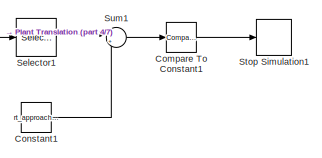
[diagram: root canvas - part 1/7, top right region]
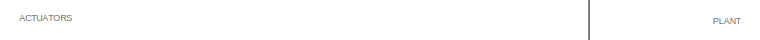
[diagram: root canvas - part 2/7, top center region]
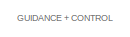
[diagram: root canvas - part 3/7, top left region]
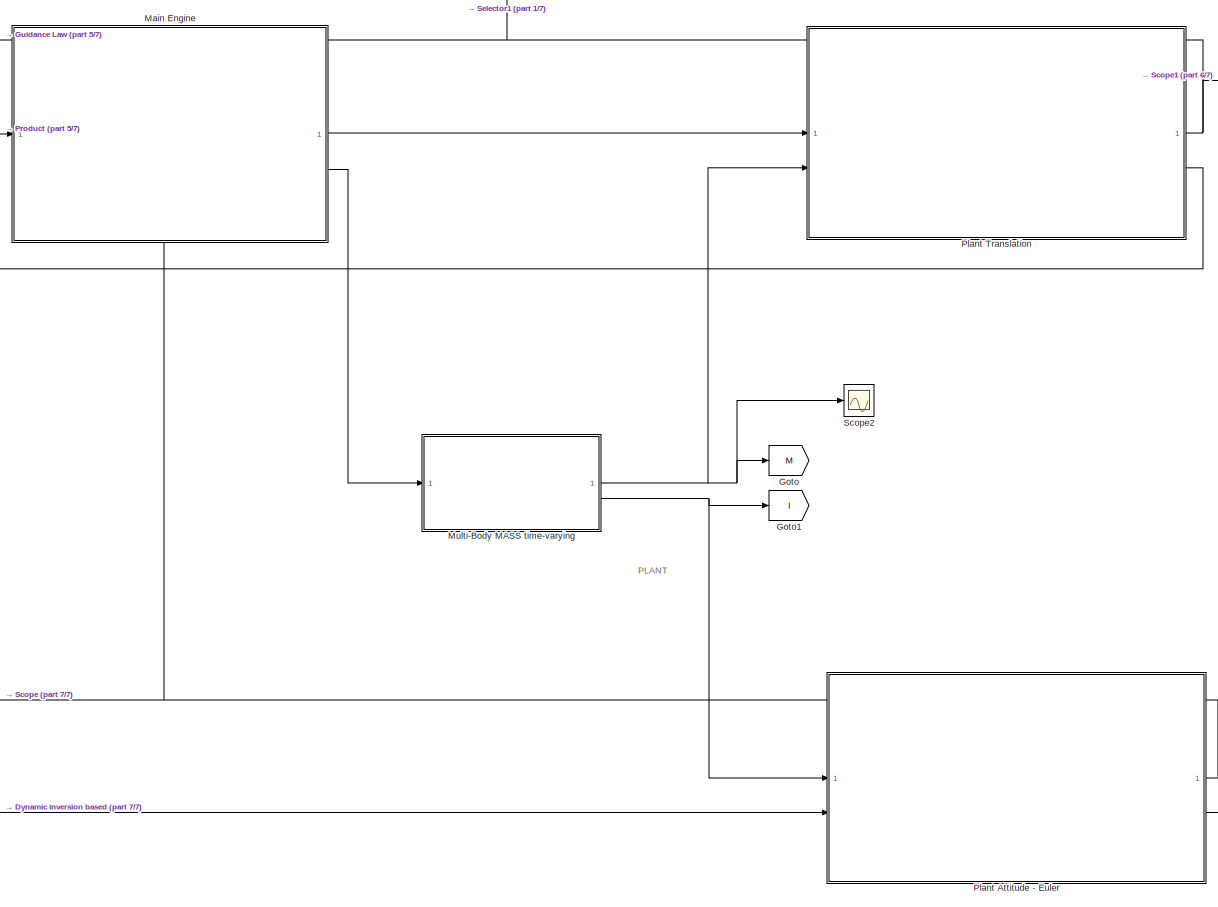
[diagram: root canvas - part 4/7, middle right region]
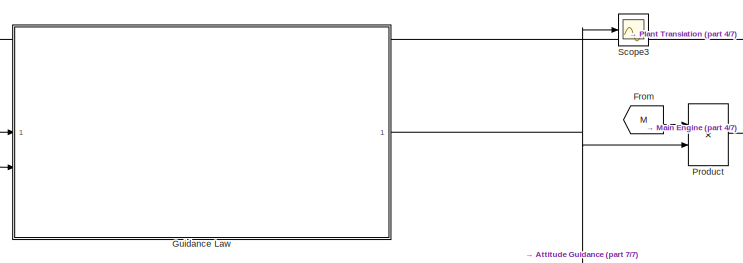
[diagram: root canvas - part 5/7, central region]
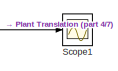
[diagram: root canvas - part 6/7, middle right region]
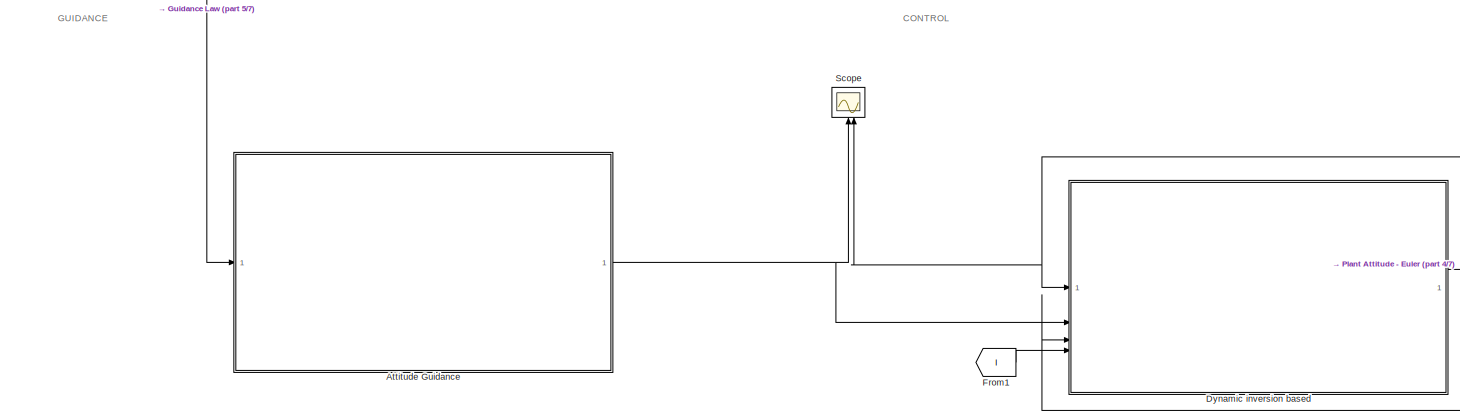
[diagram: root canvas - part 7/7, bottom left region]
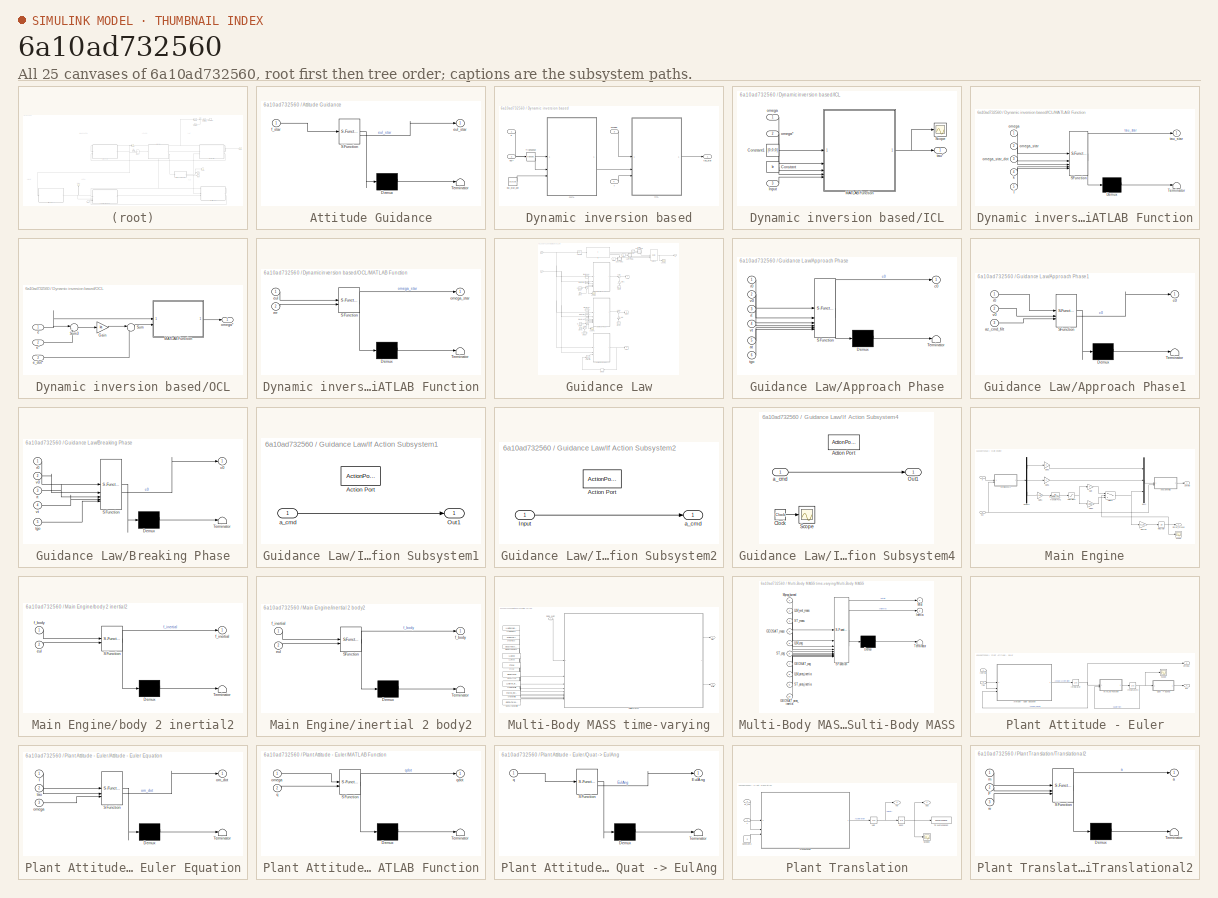
[diagram: thumbnail index - all 25 canvases of the model, root first then tree order]
MODEL slx_6a10ad732560
KIND model
CONFIG AbsTol = auto
CONFIG EnableMultiTasking = off
CONFIG FixedStep = 0.01
CONFIG MaxStep = auto
CONFIG MinStep = auto
CONFIG RelTol = 1e-3
CONFIG SampleTimeConstraint = Unconstrained
CONFIG SolverName = ode4
CONFIG StartTime = 0.0
CONFIG StopTime = 1500
BLOCK [SubSystem] Attitude Guidance
  ErrorFcn = Stateflow.Translate.translate
  PermitHierarchicalResolution = ExplicitOnly
  SFBlockType = MATLAB Function
  TreatAsAtomicUnit = on
BLOCK [Demux] Attitude Guidance/ Demux 
  Outputs = 1
BLOCK [S-Function] Attitude Guidance/ SFunction 
  EnableBusSupport = on
  FunctionName = sf_sfun
  PortCounts = [1 2]
  SFcnIsStateOwnerBlock = off
  SFunctionDeploymentMode = off
  Tag = Stateflow S-Function 1
BLOCK [Terminator] Attitude Guidance/ Terminator 
BLOCK [Outport] Attitude Guidance/eul_star
BLOCK [Inport] Attitude Guidance/f_star
BLOCK [Reference] Compare To Constant1  REF=simulink/Logic and Bit
Operations/Compare
To Constant
  SourceBlock = simulink/Logic and Bit\nOperations/Compare\nTo Constant
  SourceType = Compare To Constant
BLOCK [Constant] Constant1
  Value = rt_approach(3)
BLOCK [SubSystem] Dynamic inversion based
BLOCK [Inport] Dynamic inversion based/I
  Port = 4
  PortDimensions = [3,3]
BLOCK [SubSystem] Dynamic inversion based/ICL
  TreatAsAtomicUnit = on
BLOCK [Constant] Dynamic inversion based/ICL/Constant
  Value = kr
BLOCK [Constant] Dynamic inversion based/ICL/Constant1
  Value = [0;0;0]
BLOCK [Inport] Dynamic inversion based/ICL/Input
  Port = 3
BLOCK [SubSystem] Dynamic inversion based/ICL/MATLAB Function
  ErrorFcn = Stateflow.Translate.translate
  PermitHierarchicalResolution = ExplicitOnly
  SFBlockType = MATLAB Function
  TreatAsAtomicUnit = on
BLOCK [Demux] Dynamic inversion based/ICL/MATLAB Function/ Demux 
  Outputs = 1
BLOCK [S-Function] Dynamic inversion based/ICL/MATLAB Function/ SFunction 
  EnableBusSupport = on
  FunctionName = sf_sfun
  PortCounts = [5 2]
  SFcnIsStateOwnerBlock = off
  SFunctionDeploymentMode = off
  Tag = Stateflow S-Function 21
BLOCK [Terminator] Dynamic inversion based/ICL/MATLAB Function/ Terminator 
BLOCK [Inport] Dynamic inversion based/ICL/MATLAB Function/I
  Port = 5
BLOCK [Inport] Dynamic inversion based/ICL/MATLAB Function/k
  Port = 4
BLOCK [Inport] Dynamic inversion based/ICL/MATLAB Function/omega
BLOCK [Inport] Dynamic inversion based/ICL/MATLAB Function/omega_star
  Port = 2
BLOCK [Inport] Dynamic inversion based/ICL/MATLAB Function/omega_star_dot
  Port = 3
BLOCK [Outport] Dynamic inversion based/ICL/MATLAB Function/tau_star
BLOCK [Scope] Dynamic inversion based/ICL/Scope
  Floating = off
  NumInputPorts = 1
  ScopeSpecificationString = Simulink.scopes.TimeScopeBlockCfg('CurrentConfiguration', extmgr.ConfigurationSet(extmgr.Configuration('Core','General UI',true),extmgr.Configuration('Core','Source UI',true),extmgr.Configuration('Sources','WiredSimulink',true,'DataLoggingVariableName','ScopeData4'),extmgr.Configuration('Visuals','Time Domain',true,'SerializedDisplays',{struct('MinYLimReal','-0.34522','MaxYLimReal','0.21951','YLab...<+1505ch>
BLOCK [Inport] Dynamic inversion based/ICL/omega
BLOCK [Inport] Dynamic inversion based/ICL/omega*
  Port = 2
BLOCK [Outport] Dynamic inversion based/ICL/tau*
  NameLocation = right
BLOCK [SubSystem] Dynamic inversion based/OCL
  TreatAsAtomicUnit = on
BLOCK [Gain] Dynamic inversion based/OCL/Gain
  Gain = ka
BLOCK [SubSystem] Dynamic inversion based/OCL/MATLAB Function
  ErrorFcn = Stateflow.Translate.translate
  PermitHierarchicalResolution = ExplicitOnly
  SFBlockType = MATLAB Function
  TreatAsAtomicUnit = on
BLOCK [Demux] Dynamic inversion based/OCL/MATLAB Function/ Demux 
  Outputs = 1
BLOCK [S-Function] Dynamic inversion based/OCL/MATLAB Function/ SFunction 
  EnableBusSupport = on
  FunctionName = sf_sfun
  PortCounts = [2 2]
  SFcnIsStateOwnerBlock = off
  SFunctionDeploymentMode = off
  Tag = Stateflow S-Function 22
BLOCK [Terminator] Dynamic inversion based/OCL/MATLAB Function/ Terminator 
BLOCK [Inport] Dynamic inversion based/OCL/MATLAB Function/err
  Port = 2
BLOCK [Inport] Dynamic inversion based/OCL/MATLAB Function/eul
BLOCK [Outport] Dynamic inversion based/OCL/MATLAB Function/omega_star
BLOCK [Sum] Dynamic inversion based/OCL/Sum
  Inputs = |-+
BLOCK [Sum] Dynamic inversion based/OCL/Sum3
  Inputs = |+-
BLOCK [Inport] Dynamic inversion based/OCL/e
BLOCK [Inport] Dynamic inversion based/OCL/e*
  Port = 2
BLOCK [Inport] Dynamic inversion based/OCL/e_dot*
  Port = 3
BLOCK [Outport] Dynamic inversion based/OCL/omega*
BLOCK [Math] Dynamic inversion based/Transpose
  Operator = transpose
BLOCK [Inport] Dynamic inversion based/e
BLOCK [Inport] Dynamic inversion based/eul*
  Port = 2
BLOCK [Constant] Dynamic inversion based/eul_star_dot
  Value = [0;0;0]
BLOCK [Inport] Dynamic inversion based/omega
  Port = 3
BLOCK [Outport] Dynamic inversion based/tau_star
BLOCK [From] From
  GotoTag = M
BLOCK [From] From1
  GotoTag = I
BLOCK [Goto] Goto
  GotoTag = M
BLOCK [Goto] Goto1
  GotoTag = I
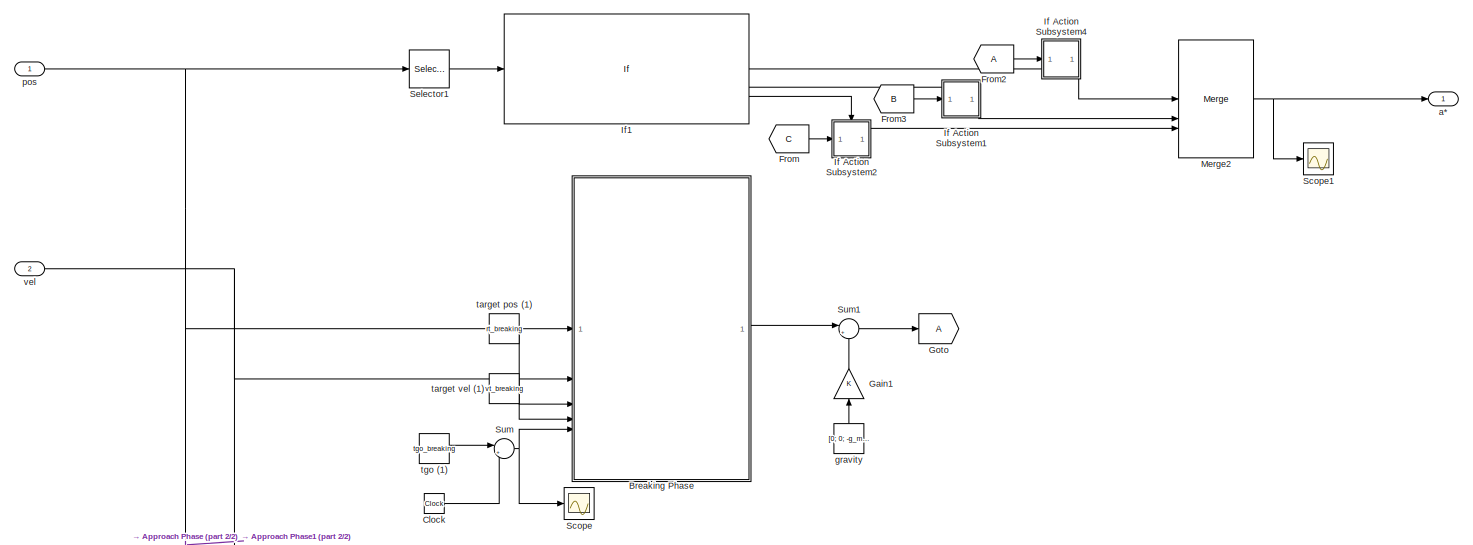
[diagram: Guidance Law - part 1/2, full width, top band]
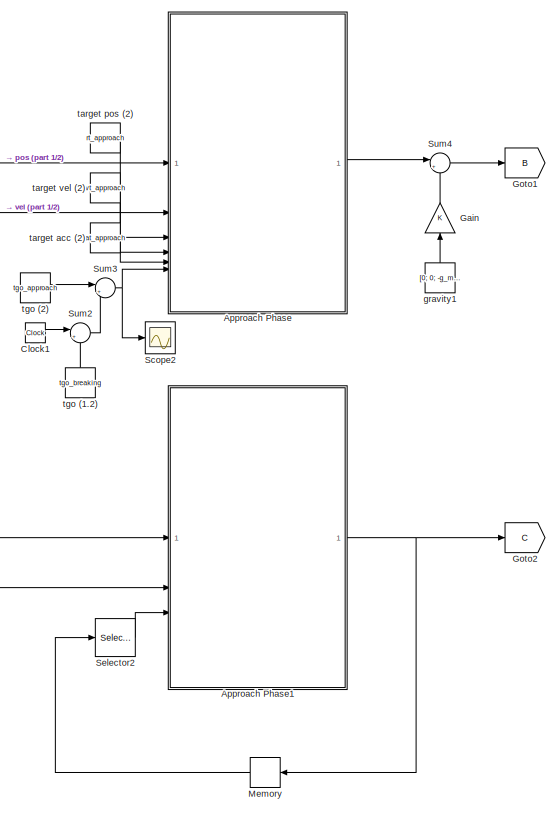
[diagram: Guidance Law - part 2/2, bottom center region]
BLOCK [SubSystem] Guidance Law
  NameLocation = top
BLOCK [SubSystem] Guidance Law/Approach Phase
  ErrorFcn = Stateflow.Translate.translate
  PermitHierarchicalResolution = ExplicitOnly
  SFBlockType = MATLAB Function
  TreatAsAtomicUnit = on
BLOCK [Demux] Guidance Law/Approach Phase/ Demux 
  Outputs = 1
BLOCK [S-Function] Guidance Law/Approach Phase/ SFunction 
  EnableBusSupport = on
  FunctionName = sf_sfun
  PortCounts = [6 2]
  SFcnIsStateOwnerBlock = off
  SFunctionDeploymentMode = off
  Tag = Stateflow S-Function 5
BLOCK [Terminator] Guidance Law/Approach Phase/ Terminator 
BLOCK [Inport] Guidance Law/Approach Phase/at
  Port = 5
BLOCK [Outport] Guidance Law/Approach Phase/c0
BLOCK [Inport] Guidance Law/Approach Phase/r0
BLOCK [Inport] Guidance Law/Approach Phase/rt
  Port = 3
BLOCK [Inport] Guidance Law/Approach Phase/tgo
  Port = 6
BLOCK [Inport] Guidance Law/Approach Phase/v0
  Port = 2
BLOCK [Inport] Guidance Law/Approach Phase/vt
  Port = 4
BLOCK [SubSystem] Guidance Law/Approach Phase1
  ErrorFcn = Stateflow.Translate.translate
  PermitHierarchicalResolution = ExplicitOnly
  SFBlockType = MATLAB Function
  TreatAsAtomicUnit = on
BLOCK [Demux] Guidance Law/Approach Phase1/ Demux 
  Outputs = 1
BLOCK [S-Function] Guidance Law/Approach Phase1/ SFunction 
  EnableBusSupport = on
  FunctionName = sf_sfun
  PortCounts = [3 2]
  SFcnIsStateOwnerBlock = off
  SFunctionDeploymentMode = off
  Tag = Stateflow S-Function 7
BLOCK [Terminator] Guidance Law/Approach Phase1/ Terminator 
BLOCK [Inport] Guidance Law/Approach Phase1/az_cmd_filt
  Port = 3
BLOCK [Outport] Guidance Law/Approach Phase1/c0
BLOCK [Inport] Guidance Law/Approach Phase1/r0
BLOCK [Inport] Guidance Law/Approach Phase1/v0
  Port = 2
BLOCK [SubSystem] Guidance Law/Breaking Phase
  ErrorFcn = Stateflow.Translate.translate
  PermitHierarchicalResolution = ExplicitOnly
  SFBlockType = MATLAB Function
  TreatAsAtomicUnit = on
BLOCK [Demux] Guidance Law/Breaking Phase/ Demux 
  Outputs = 1
BLOCK [S-Function] Guidance Law/Breaking Phase/ SFunction 
  EnableBusSupport = on
  FunctionName = sf_sfun
  PortCounts = [5 2]
  SFcnIsStateOwnerBlock = off
  SFunctionDeploymentMode = off
  Tag = Stateflow S-Function 13
BLOCK [Terminator] Guidance Law/Breaking Phase/ Terminator 
BLOCK [Outport] Guidance Law/Breaking Phase/c0
BLOCK [Inport] Guidance Law/Breaking Phase/r0
BLOCK [Inport] Guidance Law/Breaking Phase/rt
  Port = 3
BLOCK [Inport] Guidance Law/Breaking Phase/tgo
  Port = 5
BLOCK [Inport] Guidance Law/Breaking Phase/v0
  Port = 2
BLOCK [Inport] Guidance Law/Breaking Phase/vt
  Port = 4
BLOCK [Clock] Guidance Law/Clock
BLOCK [Clock] Guidance Law/Clock1
BLOCK [From] Guidance Law/From
  GotoTag = C
BLOCK [From] Guidance Law/From2
BLOCK [From] Guidance Law/From3
  GotoTag = B
BLOCK [Gain] Guidance Law/Gain
  NameLocation = right
BLOCK [Gain] Guidance Law/Gain1
  NameLocation = right
BLOCK [Goto] Guidance Law/Goto
BLOCK [Goto] Guidance Law/Goto1
  GotoTag = B
BLOCK [Goto] Guidance Law/Goto2
  GotoTag = C
BLOCK [SubSystem] Guidance Law/If Action Subsystem1
  TreatAsAtomicUnit = on
BLOCK [ActionPort] Guidance Law/If Action Subsystem1/Action Port
  ActionPortLabel = elseif(u1 >= rt_approach(3)  & u1 < rt_breaking(3)  )
BLOCK [Outport] Guidance Law/If Action Subsystem1/Out1
BLOCK [Inport] Guidance Law/If Action Subsystem1/a_cmd
BLOCK [SubSystem] Guidance Law/If Action Subsystem2
  TreatAsAtomicUnit = on
BLOCK [ActionPort] Guidance Law/If Action Subsystem2/Action Port
  ActionPortLabel = else
BLOCK [Inport] Guidance Law/If Action Subsystem2/Input
BLOCK [Outport] Guidance Law/If Action Subsystem2/a_cmd
BLOCK [SubSystem] Guidance Law/If Action Subsystem4
  TreatAsAtomicUnit = on
BLOCK [ActionPort] Guidance Law/If Action Subsystem4/Action Port
  ActionPortLabel = if(u1 >= rt_breaking(3)  )
BLOCK [Clock] Guidance Law/If Action Subsystem4/Clock
BLOCK [Outport] Guidance Law/If Action Subsystem4/Out1
BLOCK [Scope] Guidance Law/If Action Subsystem4/Scope
  Floating = off
  NumInputPorts = 1
  ScopeSpecificationString = Simulink.scopes.TimeScopeBlockCfg('CurrentConfiguration', extmgr.ConfigurationSet(extmgr.Configuration('Core','General UI',true),extmgr.Configuration('Core','Source UI',true),extmgr.Configuration('Sources','WiredSimulink',true,'DataLoggingVariableName','ScopeData1'),extmgr.Configuration('Visuals','Time Domain',true,'SerializedDisplays',{struct('MinYLimReal','-35.15','MaxYLimReal','316.35','YLabelR...<+1527ch>
BLOCK [Inport] Guidance Law/If Action Subsystem4/a_cmd
BLOCK [If] Guidance Law/If1
  ElseIfExpressions = u1 >= rt_approach(3)  & u1 < rt_breaking(3)
  IfExpression = u1 >= rt_breaking(3)
BLOCK [Memory] Guidance Law/Memory
  NameLocation = top
BLOCK [Merge] Guidance Law/Merge2
  Inputs = 3
BLOCK [Scope] Guidance Law/Scope
  Floating = off
  NumInputPorts = 1
  ScopeSpecificationString = Simulink.scopes.TimeScopeBlockCfg('CurrentConfiguration', extmgr.ConfigurationSet(extmgr.Configuration('Core','General UI',true),extmgr.Configuration('Core','Source UI',true),extmgr.Configuration('Sources','WiredSimulink',true,'DataLoggingVariableName','ScopeData1'),extmgr.Configuration('Visuals','Time Domain',true,'SerializedDisplays',{struct('MinYLimReal','-0.01364','MaxYLimReal','0.0139','YLabe...<+1518ch>
BLOCK [Scope] Guidance Law/Scope1
  Floating = off
  NumInputPorts = 1
  ScopeSpecificationString = Simulink.scopes.TimeScopeBlockCfg('CurrentConfiguration', extmgr.ConfigurationSet(extmgr.Configuration('Core','General UI',true),extmgr.Configuration('Core','Source UI',true),extmgr.Configuration('Sources','WiredSimulink',true,'DataLoggingVariableName','ScopeData3'),extmgr.Configuration('Visuals','Time Domain',true,'SerializedDisplays',{struct('MinYLimReal','-115.5376','MaxYLimReal','1039.83576','...<+1494ch>
BLOCK [Scope] Guidance Law/Scope2
  Floating = off
  NumInputPorts = 1
  ScopeSpecificationString = Simulink.scopes.TimeScopeBlockCfg('CurrentConfiguration', extmgr.ConfigurationSet(extmgr.Configuration('Core','General UI',true),extmgr.Configuration('Core','Source UI',true),extmgr.Configuration('Sources','WiredSimulink',true,'DataLoggingVariableName','ScopeData1'),extmgr.Configuration('Visuals','Time Domain',true,'SerializedDisplays',{struct('MinYLimReal','-1219.48851','MaxYLimReal','720.31149',...<+1516ch>
BLOCK [Selector] Guidance Law/Selector1
  IndexOptions = Index vector (dialog)
  Indices = [3]
  InputPortWidth = 3
  OutputSizes = 1
BLOCK [Selector] Guidance Law/Selector2
  IndexOptions = Index vector (dialog)
  Indices = [3]
  InputPortWidth = 3
  OutputSizes = 1
BLOCK [Sum] Guidance Law/Sum
  Inputs = |+-
BLOCK [Sum] Guidance Law/Sum1
  Inputs = |+-
BLOCK [Sum] Guidance Law/Sum2
  Inputs = |+-
BLOCK [Sum] Guidance Law/Sum3
  Inputs = |+-
BLOCK [Sum] Guidance Law/Sum4
  Inputs = |+-
BLOCK [Outport] Guidance Law/a*
BLOCK [Constant] Guidance Law/gravity
  NameLocation = right
  Value = [0; 0; -g_moon]
BLOCK [Constant] Guidance Law/gravity1
  NameLocation = right
  Value = [0; 0; -g_moon]
BLOCK [Inport] Guidance Law/pos
BLOCK [Constant] Guidance Law/target acc (2)
  Value = at_approach
BLOCK [Constant] Guidance Law/target pos (1)
  Value = rt_breaking
BLOCK [Constant] Guidance Law/target pos (2)
  Value = rt_approach
BLOCK [Constant] Guidance Law/target vel (1)
  Value = vt_breaking
BLOCK [Constant] Guidance Law/target vel (2)
  Value = vt_approach
BLOCK [Constant] Guidance Law/tgo (1)
  Value = tgo_breaking
BLOCK [Constant] Guidance Law/tgo (1.2)
  NameLocation = right
  Value = tgo_breaking
BLOCK [Constant] Guidance Law/tgo (2)
  Value = tgo_approach
BLOCK [Inport] Guidance Law/vel
  Port = 2
BLOCK [SubSystem] Main Engine
  NameLocation = top
  PortSchema = {"entries":[{"content":{"sides":[{"content":{"connectorIds":["In1"]},"type":"ConnectorPlacement.EquallySpacedRectSide","uuid":"1cd70ed7-fffe-4052-be12-d08ec438809a"},{"content":{"connectorIds":["Out1","Out2"],"side":"RIGHT"},"type":"ConnectorPlacement.EquallySpacedRectSide","uuid":"572c642b-d704-4725-a3d6-bfccbd3ff261"},{"content":{"side":"TOP"},"type":"ConnectorPlacement.EquallySpacedRectSide","u...<+378ch>
  TreatAsAtomicUnit = on
BLOCK [Gain] Main Engine/1//Isp*g0
  Gain = 1/(LLM.propellant.isp*g0)
BLOCK [Demux] Main Engine/Demux4
  Outputs = 3
BLOCK [Gain] Main Engine/Gain
  Gain = 0
BLOCK [Gain] Main Engine/Gain1
  Gain = 1/LLM.main_engine.Fmax
BLOCK [Gain] Main Engine/Gain2
  Gain = LLM.main_engine.Fmax
BLOCK [Gain] Main Engine/Gain3
  Gain = 0
BLOCK [Gain] Main Engine/Gain5
  Gain = 0
BLOCK [Integrator] Main Engine/Integrator
  LimitOutput = on
  LowerSaturationLimit = 0
  UpperSaturationLimit = LLM.propellant.mass
BLOCK [Mux] Main Engine/Mux4
  DisplayOption = bar
  Inputs = 3
BLOCK [Saturate] Main Engine/Saturation1
  LowerLimit = -1
  UpperLimit = 1
BLOCK [Scope] Main Engine/Scope
  Floating = off
  NumInputPorts = 1
  ScopeSpecificationString = Simulink.scopes.TimeScopeBlockCfg('CurrentConfiguration', extmgr.ConfigurationSet(extmgr.Configuration('Core','General UI',true),extmgr.Configuration('Core','Source UI',true),extmgr.Configuration('Sources','WiredSimulink',true,'DataLoggingVariableName','ScopeData3'),extmgr.Configuration('Visuals','Time Domain',true,'SerializedDisplays',{struct('MinYLimReal','-851.79898','MaxYLimReal','7666.19078',...<+1501ch>
BLOCK [Switch] Main Engine/Switch1
  Criteria = u2 > Threshold
  InputSameDT = off
  SaturateOnIntegerOverflow = off
  Threshold = 0.99*LLM.propellant.mass
BLOCK [TransferFcn] Main Engine/Transfer Fcn1
  Denominator = [LLM.main_engine.tau 1]
BLOCK [SubSystem] Main Engine/body 2 inertial2
  ErrorFcn = Stateflow.Translate.translate
  PermitHierarchicalResolution = ExplicitOnly
  SFBlockType = MATLAB Function
  TreatAsAtomicUnit = on
BLOCK [Demux] Main Engine/body 2 inertial2/ Demux 
  Outputs = 1
BLOCK [S-Function] Main Engine/body 2 inertial2/ SFunction 
  EnableBusSupport = on
  FunctionName = sf_sfun
  PortCounts = [2 2]
  SFcnIsStateOwnerBlock = off
  SFunctionDeploymentMode = off
  Tag = Stateflow S-Function 17
BLOCK [Terminator] Main Engine/body 2 inertial2/ Terminator 
BLOCK [Inport] Main Engine/body 2 inertial2/eul
  Port = 2
BLOCK [Inport] Main Engine/body 2 inertial2/f_body
BLOCK [Outport] Main Engine/body 2 inertial2/f_inertial
BLOCK [Inport] Main Engine/eul
  Port = 2
BLOCK [Inport] Main Engine/f*
BLOCK [Outport] Main Engine/f_inertial
BLOCK [SubSystem] Main Engine/inertial 2 body2
  ErrorFcn = Stateflow.Translate.translate
  PermitHierarchicalResolution = ExplicitOnly
  SFBlockType = MATLAB Function
  TreatAsAtomicUnit = on
BLOCK [Demux] Main Engine/inertial 2 body2/ Demux 
  Outputs = 1
BLOCK [S-Function] Main Engine/inertial 2 body2/ SFunction 
  EnableBusSupport = on
  FunctionName = sf_sfun
  PortCounts = [2 2]
  SFcnIsStateOwnerBlock = off
  SFunctionDeploymentMode = off
  Tag = Stateflow S-Function 18
BLOCK [Terminator] Main Engine/inertial 2 body2/ Terminator 
BLOCK [Inport] Main Engine/inertial 2 body2/eul
  Port = 2
BLOCK [Outport] Main Engine/inertial 2 body2/f_body
BLOCK [Inport] Main Engine/inertial 2 body2/f_inertial
BLOCK [Outport] Main Engine/mprop_bruned
  Port = 2
BLOCK [SubSystem] Multi-Body MASS time-varying
BLOCK [Constant] Multi-Body MASS time-varying/GEOSAT area inertia
  Value = GEOSAT.area_inertia
BLOCK [Constant] Multi-Body MASS time-varying/GEOSAT cog
  Value = GEOSAT.cog
BLOCK [Constant] Multi-Body MASS time-varying/GEOSAT dry mass
  Value = GEOSAT.mass.dry
BLOCK [Outport] Multi-Body MASS time-varying/Inertia
  Port = 2
BLOCK [Constant] Multi-Body MASS time-varying/LLM area inertia
  Value = LLM.area_inertia
BLOCK [Constant] Multi-Body MASS time-varying/LLM cog
  Value = LLM.cog
BLOCK [Constant] Multi-Body MASS time-varying/LLM wet mass
  Value = LLM.mass.wet_descent
BLOCK [Outport] Multi-Body MASS time-varying/Mtot
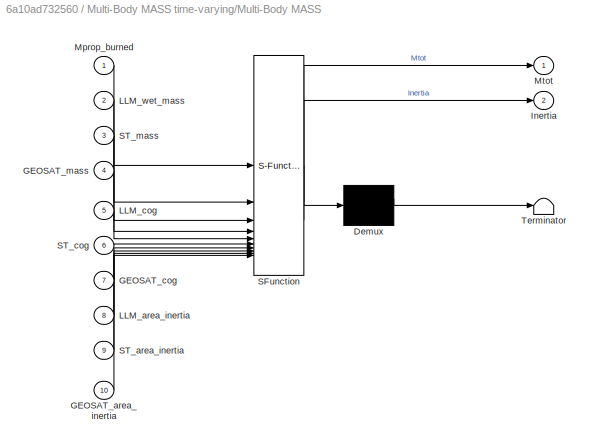
BLOCK [SubSystem] Multi-Body MASS time-varying/Multi-Body MASS
  ErrorFcn = Stateflow.Translate.translate
  PermitHierarchicalResolution = ExplicitOnly
  SFBlockType = MATLAB Function
  TreatAsAtomicUnit = on
BLOCK [Demux] Multi-Body MASS time-varying/Multi-Body MASS/ Demux 
  Outputs = 1
BLOCK [S-Function] Multi-Body MASS time-varying/Multi-Body MASS/ SFunction 
  EnableBusSupport = on
  FunctionName = sf_sfun
  PortCounts = [10 3]
  SFcnIsStateOwnerBlock = off
  SFunctionDeploymentMode = off
  Tag = Stateflow S-Function 4
BLOCK [Terminator] Multi-Body MASS time-varying/Multi-Body MASS/ Terminator 
BLOCK [Inport] Multi-Body MASS time-varying/Multi-Body MASS/GEOSAT_area_inertia
  Port = 10
BLOCK [Inport] Multi-Body MASS time-varying/Multi-Body MASS/GEOSAT_cog
  Port = 7
BLOCK [Inport] Multi-Body MASS time-varying/Multi-Body MASS/GEOSAT_mass
  Port = 4
BLOCK [Outport] Multi-Body MASS time-varying/Multi-Body MASS/Inertia
  Port = 2
BLOCK [Inport] Multi-Body MASS time-varying/Multi-Body MASS/LLM_area_inertia
  Port = 8
BLOCK [Inport] Multi-Body MASS time-varying/Multi-Body MASS/LLM_cog
  Port = 5
BLOCK [Inport] Multi-Body MASS time-varying/Multi-Body MASS/LLM_wet_mass
  Port = 2
BLOCK [Inport] Multi-Body MASS time-varying/Multi-Body MASS/Mprop_burned
BLOCK [Outport] Multi-Body MASS time-varying/Multi-Body MASS/Mtot
BLOCK [Inport] Multi-Body MASS time-varying/Multi-Body MASS/ST_area_inertia
  Port = 9
BLOCK [Inport] Multi-Body MASS time-varying/Multi-Body MASS/ST_cog
  Port = 6
BLOCK [Inport] Multi-Body MASS time-varying/Multi-Body MASS/ST_mass
  Port = 3
BLOCK [Constant] Multi-Body MASS time-varying/ST area inertia
  Value = ST.area_inertia
BLOCK [Constant] Multi-Body MASS time-varying/ST cog
  Value = ST.cog
BLOCK [Constant] Multi-Body MASS time-varying/ST dry mass
  Value = ST.mass.dry
BLOCK [Inport] Multi-Body MASS time-varying/mprop_burnt
BLOCK [SubSystem] Plant Attitude - Euler
BLOCK [SubSystem] Plant Attitude - Euler/Attitude - Euler Equation
  ErrorFcn = Stateflow.Translate.translate
  PermitHierarchicalResolution = ExplicitOnly
  SFBlockType = MATLAB Function
  TreatAsAtomicUnit = on
BLOCK [Demux] Plant Attitude - Euler/Attitude - Euler Equation/ Demux 
  Outputs = 1
BLOCK [S-Function] Plant Attitude - Euler/Attitude - Euler Equation/ SFunction 
  EnableBusSupport = on
  FunctionName = sf_sfun
  PortCounts = [3 2]
  SFcnIsStateOwnerBlock = off
  SFunctionDeploymentMode = off
  Tag = Stateflow S-Function 23
BLOCK [Terminator] Plant Attitude - Euler/Attitude - Euler Equation/ Terminator 
BLOCK [Inport] Plant Attitude - Euler/Attitude - Euler Equation/I
BLOCK [Outport] Plant Attitude - Euler/Attitude - Euler Equation/om_dot
BLOCK [Inport] Plant Attitude - Euler/Attitude - Euler Equation/omega
  Port = 3
BLOCK [Inport] Plant Attitude - Euler/Attitude - Euler Equation/tau
  Port = 2
BLOCK [Inport] Plant Attitude - Euler/Inertia
BLOCK [Integrator] Plant Attitude - Euler/Integrator
  InitialCondition = [0; 0; 0]
BLOCK [Integrator] Plant Attitude - Euler/Integrator3
  InitialCondition = q0'
BLOCK [SubSystem] Plant Attitude - Euler/MATLAB Function
  ErrorFcn = Stateflow.Translate.translate
  PermitHierarchicalResolution = ExplicitOnly
  SFBlockType = MATLAB Function
  TreatAsAtomicUnit = on
BLOCK [Demux] Plant Attitude - Euler/MATLAB Function/ Demux 
  Outputs = 1
BLOCK [S-Function] Plant Attitude - Euler/MATLAB Function/ SFunction 
  EnableBusSupport = on
  FunctionName = sf_sfun
  PortCounts = [2 2]
  SFcnIsStateOwnerBlock = off
  SFunctionDeploymentMode = off
  Tag = Stateflow S-Function 24
BLOCK [Terminator] Plant Attitude - Euler/MATLAB Function/ Terminator 
BLOCK [Inport] Plant Attitude - Euler/MATLAB Function/omega
BLOCK [Inport] Plant Attitude - Euler/MATLAB Function/q
  Port = 2
BLOCK [Outport] Plant Attitude - Euler/MATLAB Function/qdot
BLOCK [SubSystem] Plant Attitude - Euler/Quat -> EulAng
  ErrorFcn = Stateflow.Translate.translate
  PermitHierarchicalResolution = ExplicitOnly
  SFBlockType = MATLAB Function
  TreatAsAtomicUnit = on
BLOCK [Demux] Plant Attitude - Euler/Quat -> EulAng/ Demux 
  Outputs = 1
BLOCK [S-Function] Plant Attitude - Euler/Quat -> EulAng/ SFunction 
  EnableBusSupport = on
  FunctionName = sf_sfun
  PortCounts = [1 2]
  SFcnIsStateOwnerBlock = off
  SFunctionDeploymentMode = off
  Tag = Stateflow S-Function 26
BLOCK [Terminator] Plant Attitude - Euler/Quat -> EulAng/ Terminator 
BLOCK [Outport] Plant Attitude - Euler/Quat -> EulAng/EulAng
BLOCK [Inport] Plant Attitude - Euler/Quat -> EulAng/q
BLOCK [Scope] Plant Attitude - Euler/Scope
  Floating = off
  NumInputPorts = 1
  ScopeSpecificationString = Simulink.scopes.TimeScopeBlockCfg('CurrentConfiguration', extmgr.ConfigurationSet(extmgr.Configuration('Core','General UI',true),extmgr.Configuration('Core','Source UI',true),extmgr.Configuration('Sources','WiredSimulink',true,'DataLoggingVariableName','ScopeData2'),extmgr.Configuration('Visuals','Time Domain',true,'SerializedDisplays',{struct('MinYLimReal','-0.12844','MaxYLimReal','1.12538','YLab...<+1582ch>
BLOCK [Outport] Plant Attitude - Euler/eul
BLOCK [Outport] Plant Attitude - Euler/omega
  Port = 2
BLOCK [Inport] Plant Attitude - Euler/tau
  Port = 2
BLOCK [SubSystem] Plant Translation
BLOCK [Constant] Plant Translation/Constant3
  Value = 0
BLOCK [Scope] Plant Translation/Scope2
  Floating = off
  NumInputPorts = 1
  ScopeSpecificationString = Simulink.scopes.TimeScopeBlockCfg('CurrentConfiguration', extmgr.ConfigurationSet(extmgr.Configuration('Core','General UI',true),extmgr.Configuration('Core','Source UI',true),extmgr.Configuration('Sources','WiredSimulink',true,'DataLoggingVariableName','ScopeData8'),extmgr.Configuration('Visuals','Time Domain',true,'SerializedDisplays',{struct('MinYLimReal','-36187.37667','MaxYLimReal','325629.919...<+1580ch>
BLOCK [ToWorkspace] Plant Translation/To Workspace2
  FixptAsFi = on
  MaxDataPoints = inf
  SampleTime = -1
  VariableName = position1
BLOCK [SubSystem] Plant Translation/Translational2
  ErrorFcn = Stateflow.Translate.translate
  PermitHierarchicalResolution = ExplicitOnly
  SFBlockType = MATLAB Function
  TreatAsAtomicUnit = on
BLOCK [Demux] Plant Translation/Translational2/ Demux 
  Outputs = 1
BLOCK [S-Function] Plant Translation/Translational2/ SFunction 
  EnableBusSupport = on
  FunctionName = sf_sfun
  PortCounts = [3 2]
  SFcnIsStateOwnerBlock = off
  SFunctionDeploymentMode = off
  Tag = Stateflow S-Function 16
BLOCK [Terminator] Plant Translation/Translational2/ Terminator 
BLOCK [Inport] Plant Translation/Translational2/F
  Port = 2
BLOCK [Outport] Plant Translation/Translational2/a
BLOCK [Inport] Plant Translation/Translational2/m
BLOCK [Inport] Plant Translation/Translational2/w
  Port = 3
BLOCK [Inport] Plant Translation/f
BLOCK [Inport] Plant Translation/m_tot
  Port = 2
BLOCK [Outport] Plant Translation/pos
BLOCK [Integrator] Plant Translation/pos2
  InitialCondition = r0
BLOCK [Outport] Plant Translation/vel
  Port = 2
BLOCK [Integrator] Plant Translation/vel2
  InitialCondition = v0
BLOCK [Product] Product
BLOCK [Scope] Scope
  Floating = off
  NameLocation = right
  NumInputPorts = 2
  ScopeSpecificationString = Simulink.scopes.TimeScopeBlockCfg('CurrentConfiguration', extmgr.ConfigurationSet(extmgr.Configuration('Core','General UI',true),extmgr.Configuration('Core','Source UI',true),extmgr.Configuration('Sources','WiredSimulink',true,'DataLoggingVariableName','ScopeData3'),extmgr.Configuration('Visuals','Time Domain',true,'SerializedDisplays',{struct('MinYLimReal','-1.87732','MaxYLimReal','3.69925','YLab...<+2425ch>
BLOCK [Scope] Scope1
  Floating = off
  NumInputPorts = 1
  ScopeSpecificationString = Simulink.scopes.TimeScopeBlockCfg('CurrentConfiguration', extmgr.ConfigurationSet(extmgr.Configuration('Core','General UI',true),extmgr.Configuration('Core','Source UI',true),extmgr.Configuration('Sources','WiredSimulink',true,'DataLoggingVariableName','ScopeData1'),extmgr.Configuration('Visuals','Time Domain',true,'SerializedDisplays',{struct('MinYLimReal','-280.50981','MaxYLimReal','371.2113','Y...<+1571ch>
BLOCK [Scope] Scope2
  Floating = off
  NumInputPorts = 1
  ScopeSpecificationString = Simulink.scopes.TimeScopeBlockCfg('CurrentConfiguration', extmgr.ConfigurationSet(extmgr.Configuration('Core','General UI',true),extmgr.Configuration('Core','Source UI',true),extmgr.Configuration('Sources','WiredSimulink',true,'DataLoggingVariableName','ScopeData2'),extmgr.Configuration('Visuals','Time Domain',true,'SerializedDisplays',{struct('MinYLimReal','11941.30922','MaxYLimReal','20459.29898...<+1536ch>
BLOCK [Scope] Scope3
  Floating = off
  NumInputPorts = 1
  ScopeSpecificationString = Simulink.scopes.TimeScopeBlockCfg('CurrentConfiguration', extmgr.ConfigurationSet(extmgr.Configuration('Core','General UI',true),extmgr.Configuration('Core','Source UI',true),extmgr.Configuration('Sources','WiredSimulink',true,'DataLoggingVariableName','ScopeData1'),extmgr.Configuration('Visuals','Time Domain',true),extmgr.Configuration('Tools','Plot Navigation',true),extmgr.Configuration('Tools',...<+40ch>
BLOCK [Selector] Selector1
  IndexOptions = Index vector (dialog)
  Indices = [3]
  InputPortWidth = 3
  OutputSizes = 1
BLOCK [Stop] Stop Simulation1
BLOCK [Sum] Sum1
  Inputs = |+-
ANNOTATION (root): CONTROL
ANNOTATION (root): GUIDANCE
ANNOTATION (root): ACTUATORS
ANNOTATION (root): GUIDANCE + CONTROL
ANNOTATION (root): PLANT
NET Attitude Guidance:1 -> Dynamic inversion based:2, Scope:1
LINE Compare To Constant1:1 -> Stop Simulation1:1
LINE Constant1:1 -> Sum1:2
LINE Dynamic inversion based/I:1 -> Dynamic inversion based/ICL:3
LINE Dynamic inversion based/ICL/Constant1:1 -> Dynamic inversion based/ICL/MATLAB Function:3
LINE Dynamic inversion based/ICL/Constant:1 -> Dynamic inversion based/ICL/MATLAB Function:4
LINE Dynamic inversion based/ICL/Input:1 -> Dynamic inversion based/ICL/MATLAB Function:5
NET Dynamic inversion based/ICL/MATLAB Function:1 -> Dynamic inversion based/ICL/Scope:1, Dynamic inversion based/ICL/tau*:1
LINE Dynamic inversion based/ICL/omega*:1 -> Dynamic inversion based/ICL/MATLAB Function:2
LINE Dynamic inversion based/ICL/omega:1 -> Dynamic inversion based/ICL/MATLAB Function:1
LINE Dynamic inversion based/ICL:1 -> Dynamic inversion based/tau_star:1
LINE Dynamic inversion based/OCL/Gain:1 -> Dynamic inversion based/OCL/Sum:1
LINE Dynamic inversion based/OCL/MATLAB Function:1 -> Dynamic inversion based/OCL/omega*:1
LINE Dynamic inversion based/OCL/Sum3:1 -> Dynamic inversion based/OCL/Gain:1
LINE Dynamic inversion based/OCL/Sum:1 -> Dynamic inversion based/OCL/MATLAB Function:2
LINE Dynamic inversion based/OCL/e*:1 -> Dynamic inversion based/OCL/Sum3:2
NET Dynamic inversion based/OCL/e:1 -> Dynamic inversion based/OCL/MATLAB Function:1, Dynamic inversion based/OCL/Sum3:1
LINE Dynamic inversion based/OCL/e_dot*:1 -> Dynamic inversion based/OCL/Sum:2
LINE Dynamic inversion based/OCL:1 -> Dynamic inversion based/ICL:2
LINE Dynamic inversion based/Transpose:1 -> Dynamic inversion based/OCL:2
LINE Dynamic inversion based/e:1 -> Dynamic inversion based/OCL:1
LINE Dynamic inversion based/eul*:1 -> Dynamic inversion based/Transpose:1
LINE Dynamic inversion based/eul_star_dot:1 -> Dynamic inversion based/OCL:3
LINE Dynamic inversion based/omega:1 -> Dynamic inversion based/ICL:1
LINE Dynamic inversion based:1 -> Plant Attitude - Euler:2
LINE From1:1 -> Dynamic inversion based:4
LINE From:1 -> Product:1
NET Guidance Law/Approach Phase1:1 -> Guidance Law/Goto2:1, Guidance Law/Memory:1
LINE Guidance Law/Approach Phase:1 -> Guidance Law/Sum4:1
LINE Guidance Law/Breaking Phase:1 -> Guidance Law/Sum1:1
LINE Guidance Law/Clock1:1 -> Guidance Law/Sum2:1
LINE Guidance Law/Clock:1 -> Guidance Law/Sum:2
LINE Guidance Law/From2:1 -> Guidance Law/If Action Subsystem4:1
LINE Guidance Law/From3:1 -> Guidance Law/If Action Subsystem1:1
LINE Guidance Law/From:1 -> Guidance Law/If Action Subsystem2:1
LINE Guidance Law/Gain1:1 -> Guidance Law/Sum1:2
LINE Guidance Law/Gain:1 -> Guidance Law/Sum4:2
LINE Guidance Law/If Action Subsystem1/a_cmd:1 -> Guidance Law/If Action Subsystem1/Out1:1
LINE Guidance Law/If Action Subsystem1:1 -> Guidance Law/Merge2:2
LINE Guidance Law/If Action Subsystem2/Input:1 -> Guidance Law/If Action Subsystem2/a_cmd:1
LINE Guidance Law/If Action Subsystem2:1 -> Guidance Law/Merge2:3
LINE Guidance Law/If Action Subsystem4/Clock:1 -> Guidance Law/If Action Subsystem4/Scope:1
LINE Guidance Law/If Action Subsystem4/a_cmd:1 -> Guidance Law/If Action Subsystem4/Out1:1
LINE Guidance Law/If Action Subsystem4:1 -> Guidance Law/Merge2:1
LINE Guidance Law/If1:1 -> Guidance Law/If Action Subsystem4:ifaction
LINE Guidance Law/If1:2 -> Guidance Law/If Action Subsystem1:ifaction
LINE Guidance Law/If1:3 -> Guidance Law/If Action Subsystem2:ifaction
LINE Guidance Law/Memory:1 -> Guidance Law/Selector2:1
NET Guidance Law/Merge2:1 -> Guidance Law/Scope1:1, Guidance Law/a*:1
LINE Guidance Law/Selector1:1 -> Guidance Law/If1:1
LINE Guidance Law/Selector2:1 -> Guidance Law/Approach Phase1:3
LINE Guidance Law/Sum1:1 -> Guidance Law/Goto:1
LINE Guidance Law/Sum2:1 -> Guidance Law/Sum3:2
NET Guidance Law/Sum3:1 -> Guidance Law/Approach Phase:6, Guidance Law/Scope2:1
LINE Guidance Law/Sum4:1 -> Guidance Law/Goto1:1
NET Guidance Law/Sum:1 -> Guidance Law/Breaking Phase:5, Guidance Law/Scope:1
LINE Guidance Law/gravity1:1 -> Guidance Law/Gain:1
LINE Guidance Law/gravity:1 -> Guidance Law/Gain1:1
NET Guidance Law/pos:1 -> Guidance Law/Approach Phase1:1, Guidance Law/Approach Phase:1, Guidance Law/Breaking Phase:1, Guidance Law/Selector1:1
LINE Guidance Law/target acc (2):1 -> Guidance Law/Approach Phase:5
LINE Guidance Law/target pos (1):1 -> Guidance Law/Breaking Phase:3
LINE Guidance Law/target pos (2):1 -> Guidance Law/Approach Phase:3
LINE Guidance Law/target vel (1):1 -> Guidance Law/Breaking Phase:4
LINE Guidance Law/target vel (2):1 -> Guidance Law/Approach Phase:4
LINE Guidance Law/tgo (1):1 -> Guidance Law/Sum:1
LINE Guidance Law/tgo (1.2):1 -> Guidance Law/Sum2:2
LINE Guidance Law/tgo (2):1 -> Guidance Law/Sum3:1
NET Guidance Law/vel:1 -> Guidance Law/Approach Phase1:2, Guidance Law/Approach Phase:2, Guidance Law/Breaking Phase:2
NET Guidance Law:1 -> Attitude Guidance:1, Product:2, Scope3:1
LINE Main Engine/1//Isp*g0:1 -> Main Engine/Integrator:1
LINE Main Engine/Demux4:1 -> Main Engine/Gain3:1
LINE Main Engine/Demux4:2 -> Main Engine/Gain5:1
LINE Main Engine/Demux4:3 -> Main Engine/Gain1:1
LINE Main Engine/Gain1:1 -> Main Engine/Transfer Fcn1:1
LINE Main Engine/Gain2:1 -> Main Engine/Switch1:3
LINE Main Engine/Gain3:1 -> Main Engine/Mux4:1
LINE Main Engine/Gain5:1 -> Main Engine/Mux4:2
LINE Main Engine/Gain:1 -> Main Engine/Switch1:1
NET Main Engine/Integrator:1 -> Main Engine/Scope:1, Main Engine/Switch1:2, Main Engine/mprop_bruned:1
LINE Main Engine/Mux4:1 -> Main Engine/body 2 inertial2:1
NET Main Engine/Saturation1:1 -> Main Engine/Gain2:1, Main Engine/Gain:1
NET Main Engine/Switch1:1 -> Main Engine/1//Isp*g0:1, Main Engine/Mux4:3
LINE Main Engine/Transfer Fcn1:1 -> Main Engine/Saturation1:1
LINE Main Engine/body 2 inertial2:1 -> Main Engine/f_inertial:1
NET Main Engine/eul:1 -> Main Engine/body 2 inertial2:2, Main Engine/inertial 2 body2:2
LINE Main Engine/f*:1 -> Main Engine/inertial 2 body2:1
LINE Main Engine/inertial 2 body2:1 -> Main Engine/Demux4:1
LINE Main Engine:1 -> Plant Translation:1
LINE Main Engine:2 -> Multi-Body MASS time-varying:1
LINE Multi-Body MASS time-varying/GEOSAT area inertia:1 -> Multi-Body MASS time-varying/Multi-Body MASS:10
LINE Multi-Body MASS time-varying/GEOSAT cog:1 -> Multi-Body MASS time-varying/Multi-Body MASS:7
LINE Multi-Body MASS time-varying/GEOSAT dry mass:1 -> Multi-Body MASS time-varying/Multi-Body MASS:4
LINE Multi-Body MASS time-varying/LLM area inertia:1 -> Multi-Body MASS time-varying/Multi-Body MASS:8
LINE Multi-Body MASS time-varying/LLM cog:1 -> Multi-Body MASS time-varying/Multi-Body MASS:5
LINE Multi-Body MASS time-varying/LLM wet mass:1 -> Multi-Body MASS time-varying/Multi-Body MASS:2
LINE Multi-Body MASS time-varying/Multi-Body MASS:1 -> Multi-Body MASS time-varying/Mtot:1
LINE Multi-Body MASS time-varying/Multi-Body MASS:2 -> Multi-Body MASS time-varying/Inertia:1
LINE Multi-Body MASS time-varying/ST area inertia:1 -> Multi-Body MASS time-varying/Multi-Body MASS:9
LINE Multi-Body MASS time-varying/ST cog:1 -> Multi-Body MASS time-varying/Multi-Body MASS:6
LINE Multi-Body MASS time-varying/ST dry mass:1 -> Multi-Body MASS time-varying/Multi-Body MASS:3
LINE Multi-Body MASS time-varying/mprop_burnt:1 -> Multi-Body MASS time-varying/Multi-Body MASS:1
NET Multi-Body MASS time-varying:1 -> Goto:1, Plant Translation:2, Scope2:1
NET Multi-Body MASS time-varying:2 -> Goto1:1, Plant Attitude - Euler:1
LINE Plant Attitude - Euler/Attitude - Euler Equation:1 -> Plant Attitude - Euler/Integrator:1
LINE Plant Attitude - Euler/Inertia:1 -> Plant Attitude - Euler/Attitude - Euler Equation:1
NET Plant Attitude - Euler/Integrator3:1 -> Plant Attitude - Euler/MATLAB Function:2, Plant Attitude - Euler/Quat -> EulAng:1, Plant Attitude - Euler/Scope:1
NET Plant Attitude - Euler/Integrator:1 -> Plant Attitude - Euler/Attitude - Euler Equation:3, Plant Attitude - Euler/MATLAB Function:1, Plant Attitude - Euler/omega:1
LINE Plant Attitude - Euler/MATLAB Function:1 -> Plant Attitude - Euler/Integrator3:1
LINE Plant Attitude - Euler/Quat -> EulAng:1 -> Plant Attitude - Euler/eul:1
LINE Plant Attitude - Euler/tau:1 -> Plant Attitude - Euler/Attitude - Euler Equation:2
NET Plant Attitude - Euler:1 -> Dynamic inversion based:1, Main Engine:2, Scope:2
LINE Plant Attitude - Euler:2 -> Dynamic inversion based:3
LINE Plant Translation/Constant3:1 -> Plant Translation/Translational2:3
LINE Plant Translation/Translational2:1 -> Plant Translation/vel2:1
LINE Plant Translation/f:1 -> Plant Translation/Translational2:2
LINE Plant Translation/m_tot:1 -> Plant Translation/Translational2:1
NET Plant Translation/pos2:1 -> Plant Translation/Scope2:1, Plant Translation/To Workspace2:1, Plant Translation/pos:1
NET Plant Translation/vel2:1 -> Plant Translation/pos2:1, Plant Translation/vel:1
NET Plant Translation:1 -> Guidance Law:1, Scope1:1, Selector1:1
LINE Plant Translation:2 -> Guidance Law:2
LINE Product:1 -> Main Engine:1
LINE Selector1:1 -> Sum1:1
LINE Sum1:1 -> Compare To Constant1:1
note: NET lines group one-source signal fan-out (src -> all destinations, sorted); 1:1 wires keep LINE
CHART Dynamic inversion based/ICL/MATLAB Function states=1 transitions=1
  STATE_LABEL 'eML_blk_kernel()'
  STATE_LABEL 'SCRIPT:\nfunction tau_star = fcn(omega, omega_star, omega_star_dot, k ,I)\n      \n    tau_star = I*(omega_star_dot-k.*(omega-omega_star)) + [(I(3,3)-I(2,2))*omega(2)*omega(3); (I(1,1)-I(3,3))*omega(1)*omega(3); (I(2,2)-I(1,1))*omega(1)*omega(2)];\n    % tau_max = 4e3;\n    % tau_star = min(max(tau_star, -tau_max), tau_max);\n\nend\n'
CHART Dynamic inversion based/OCL/MATLAB Function states=1 transitions=1
  STATE_LABEL 'eML_blk_kernel()'
  STATE_LABEL 'SCRIPT:\nfunction omega_star = fcn(eul, err)\n    \n    err = wrapToPi(err);\n    T = [1  0 -sin(eul(2));\n         0  cos(eul(1)) sin(eul(1))*cos(eul(2));\n         0 -sin(eul(1)) cos(eul(1))*cos(eul(2))];\n    if err(2)>0\n        a=1;\n    end\n    omega_star = T*err;\n    omega_star = max(min(omega_star, 0.7), -0.7);\n\nend\n'
CHART Plant Attitude - Euler/Attitude - Euler Equation states=1 transitions=1
  STATE_LABEL 'eML_blk_kernel()'
  STATE_LABEL 'SCRIPT:\nfunction om_dot = rotation(I, tau, omega)\n    \n    om_dot = inv(I)*(tau-cross(omega,I*omega));\n\nend'
CHART Plant Attitude - Euler/MATLAB Function states=1 transitions=1
  STATE_LABEL 'eML_blk_kernel()'
  STATE_LABEL "SCRIPT:\nfunction qdot = fcn(omega,q)\n\nOmega = [0 -omega(1) -omega(2) -omega(3);\n         omega(1) 0 omega(3) omega(2);\n         omega(2) omega(3) 0 omega(1);\n         omega(3) omega(2) omega(1) 0];\n\nq0 = q(1);\nq1 = q(2);\nq2 = q(3);\nq3 = q(4);\n\nqdot = 0.5*Omega*[q0 q1 q2 q3]';\n"
CHART Plant Attitude - Euler/Quat -> EulAng states=1 transitions=1
  STATE_LABEL 'eML_blk_kernel()'
  STATE_LABEL 'SCRIPT:\nfunction EulAng = fcn(q)\n\n    qs = q(1); qx = q(2); qy = q(3); qz = q(4);\n    \n    EulAng = [-atan2(2*(-qs*qx+qy*qz), -qx^2-qy^2+qz^2+qs^2);\n              atan2(2*(qz*qx+qy*qs), (1-(2*(qz*qx+qy*qs))^2)^.5); %asin(2*(qz*qx+qyqs));\n              -atan2(2*(-qs*qz+qx*qy), qx^2-qy^2-qz^2+qs^2)];\n\nend'
CHART Attitude Guidance states=1 transitions=1
  STATE_LABEL 'eML_blk_kernel()'
  STATE_LABEL "SCRIPT:\nfunction eul_star = force2eul(f_star)\n\n    R1 = @(bank)  [cos(bank) sin(bank) 0; -sin(bank) cos(bank) 0; 0 0 1];\n    R2 = @(pitch) [sin(pitch) 0 -cos(pitch); 0 1 0; cos(pitch) 0 sin(pitch)];\n    \n    bank = atan2(f_star(2,:),f_star(1,:));\n    f_cmd_rot = R1(bank)*f_star;\n    pitch = atan2(f_cmd_rot(3,:),f_cmd_rot(1,:));\n    R = R2(pitch)*R1(bank);\n    eul_star = rotm2eul(R,'ZYX');\n    eulx...<+162ch>"
CHART Multi-Body MASS time-varying/Multi-Body MASS states=1 transitions=1
  STATE_LABEL 'eML_blk_kernel()'
  STATE_LABEL 'SCRIPT:\nfunction [Mtot, Inertia] = fcn(Mprop_burned, LLM_wet_mass, ST_mass, GEOSAT_mass, LLM_cog, ST_cog, GEOSAT_cog, LLM_area_inertia, ST_area_inertia, GEOSAT_area_inertia)\n% --- INPUT ---\n% Mprop_burned : total propellant burned so far\n% LLM_wet_mass : total LLM mass (dry = full propellant)\n% ST_mass : Space Tug mass (dry)\n% GEOSAT_mass : GEOSAT mass (dry)\n% LLM_cog : LLM center of gravity 3x1\n%...<+1532ch>'
CHART Guidance Law/Approach Phase states=1 transitions=1
  STATE_LABEL 'eML_blk_kernel()'
  STATE_LABEL 'SCRIPT:\nfunction c0 = approach_coeffs(r0,v0,rt,vt,at,tgo)\n\n    c0 = at - 6*(vt+v0)/tgo + 12*(rt - r0)/(tgo^2);\n    if tgo<1\n        tgo = 1;\n        c0 = [0; 0; -1.63];\n    end\n\nend'
CHART Guidance Law/Approach Phase1 states=1 transitions=1
  STATE_LABEL 'eML_blk_kernel()'
  STATE_LABEL "SCRIPT:\nfunction c0 = approach_coeffs(r0,v0,az_cmd_filt)\n    \n    g_moon  = 1.62;\n    az3_cmd = 1.2*g_moon;\n\n    clip = @(u,umin,umax) max(min(u,umax),umin);\n\n    if ~exist('Kxy','var'),      Kxy = 0.8; end\n    if ~exist('ax_max','var'),   ax_max = 2.0; end\n    if ~exist('ay_max','var'),   ay_max = 2.0; end\n    if ~exist('daz_max','var'),  daz_max = 0.6*g_moon; end\n    if ~exist('az_cmd_filt','var...<+3217ch>"
CHART Guidance Law/Breaking Phase states=1 transitions=1
  STATE_LABEL 'eML_blk_kernel()'
  STATE_LABEL 'SCRIPT:\nfunction c0 = braking_coeffs(r0, v0, rt, vt, tgo)\n    \n    c0 = (-2*(vt+2*v0))/tgo + 6*(rt - r0)/(tgo^2);\n    if tgo<0.5\n        c0 = [0; 0; -1.63];\n    end\n\nend'
CHART Plant Translation/Translational2 states=1 transitions=1
  STATE_LABEL 'eML_blk_kernel()'
  STATE_LABEL 'SCRIPT:\nfunction a = translation(m, F, w)\n\n% lunar gravity in inertial frame (verso -Z)\ngL = 1.622;\ng = [0; 0; -gL];\n\na = F./m + g;\n\nend'
CHART Main Engine/body 2 inertial2 states=1 transitions=1
  STATE_LABEL 'eML_blk_kernel()'
  STATE_LABEL "SCRIPT:\nfunction f_inertial = fcn(f_body,eul)\n\n% Using quaternions\n% q0 = q(1);\n% q1 = q(2);\n% q2 = q(3);\n% q3 = q(4);\n% R = [q0^2+q1^2-q2^2-q3^2 2*(q1*q2-q0*q3) 2*(q1*q3+q0*q2);\n%      2*(q1*q2+q0*q3) q0^2-q1^2+q2^2-q3^2 2*(q2*q3-q0*q1);\n%      2*(q1*q3-q0*q2) 2*(q2*q3+q0*q1) q0^2-q1^2-q2^2+q3^2];\n\n\n% Using euler angles (ZYX)\n% eul(1) rotation around x\n% eul(2) rotation around y'\n% eul(3) rotatio...<+266ch>"
CHART Main Engine/inertial 2 body2 states=1 transitions=1
  STATE_LABEL 'eML_blk_kernel()'
  STATE_LABEL "SCRIPT:\nfunction f_body = fcn(f_inertial,eul)\n\n% Using quaternions\n% q0 = q(1);\n% q1 = q(2);\n% q2 = q(3);\n% q3 = q(4);\n% R = [q0^2+q1^2-q2^2-q3^2 2*(q1*q2-q0*q3) 2*(q1*q3+q0*q2);\n%      2*(q1*q2+q0*q3) q0^2-q1^2+q2^2-q3^2 2*(q2*q3-q0*q1);\n%      2*(q1*q3-q0*q2) 2*(q2*q3+q0*q1) q0^2-q1^2-q2^2+q3^2];\n\n\n% Using euler angles (ZYX)\n% eul(1) rotation around x\n% eul(2) rotation around y'\n% eul(3) rotatio...<+265ch>"
CHART  states=0 transitions=0
CHART  states=0 transitions=0
CHART  states=0 transitions=0
CHART  states=0 transitions=0
CHART  states=0 transitions=0
CHART  states=0 transitions=0
CHART  states=0 transitions=0
CHART  states=0 transitions=0
CHART  states=0 transitions=0
CHART  states=0 transitions=0
CHART  states=0 transitions=0
CHART  states=0 transitions=0
CHART  states=0 transitions=0
